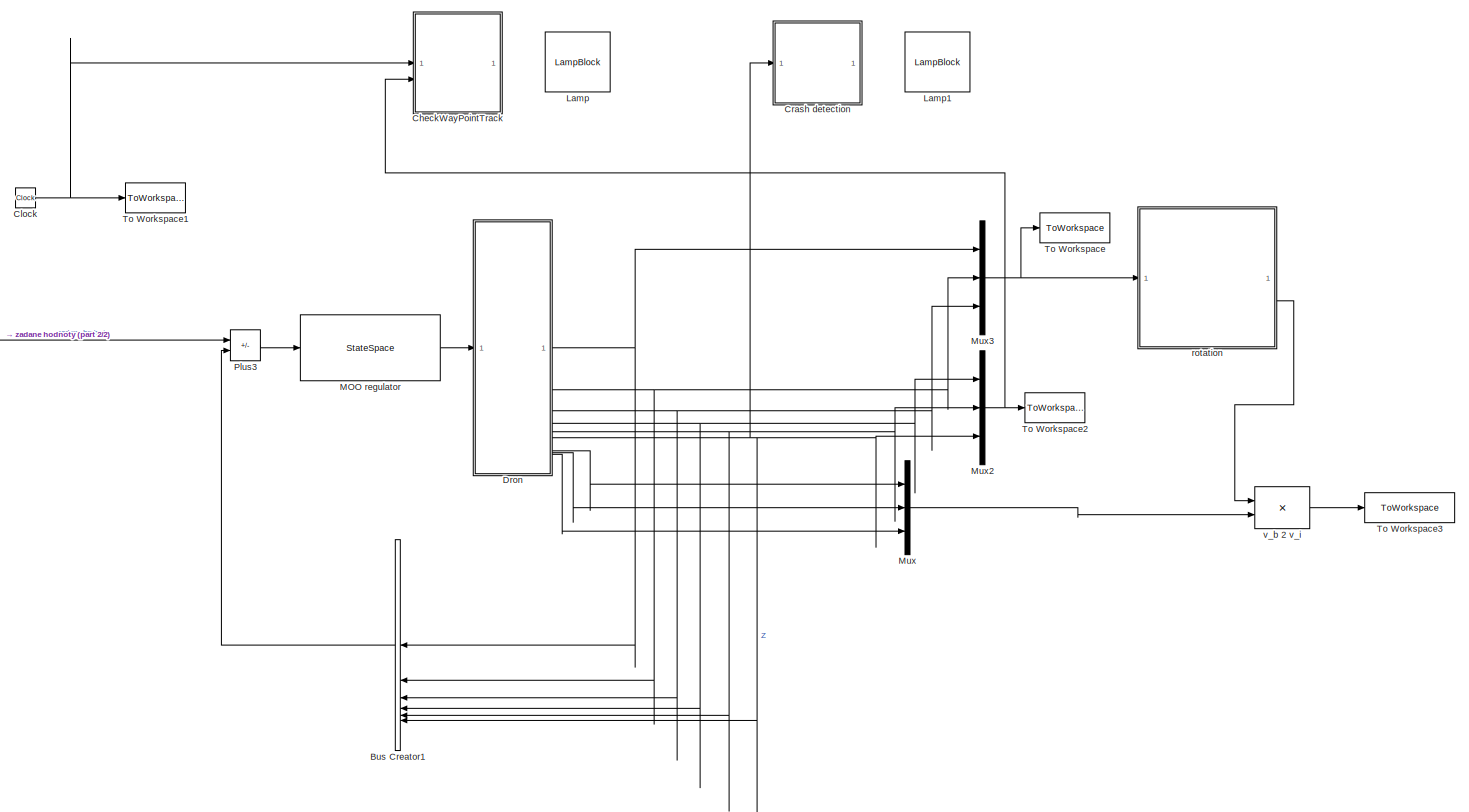
[diagram: root canvas - part 1/2, most of the canvas]
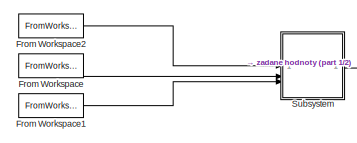
[diagram: root canvas - part 2/2, middle left region]
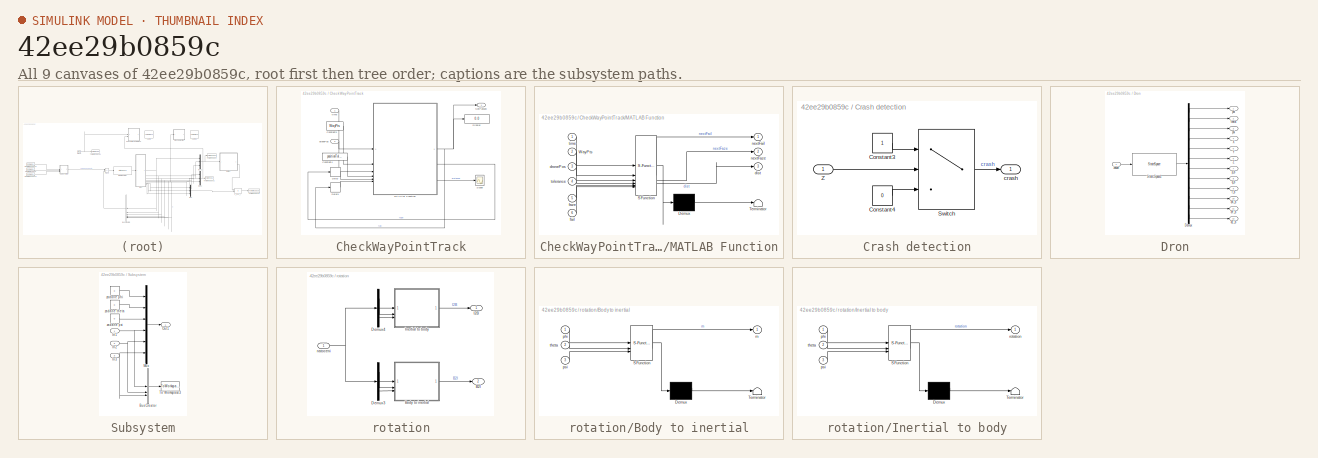
[diagram: thumbnail index - all 9 canvases of the model, root first then tree order]
MODEL slx_42ee29b0859c
KIND model
CONFIG AbsTol = auto
CONFIG EnableMultiTasking = off
CONFIG FixedStep = auto
CONFIG MaxStep = auto
CONFIG MinStep = auto
CONFIG RelTol = 1e-3
CONFIG SampleTimeConstraint = Unconstrained
CONFIG SolverName = VariableStepAuto
CONFIG StartTime = 0.0
CONFIG StopTime = Tfinal
BLOCK [BusCreator] Bus Creator1
  DisplayOption = bar
  InheritFromInputs = on
  Inputs = 6
  NameLocation = top
BLOCK [SubSystem] CheckWayPointTrack
BLOCK [Constant] CheckWayPointTrack/Constant3
  Value = WayPts
BLOCK [Constant] CheckWayPointTrack/Constant4
  Value = positionTolerance
BLOCK [Delay] CheckWayPointTrack/Delay
  DelayLength = 1
  InitialCondition = 1
  InputPortMap = u0
BLOCK [Delay] CheckWayPointTrack/Delay1
  DelayLength = 1
  InitialCondition = 0
  InputPortMap = u0
BLOCK [Display] CheckWayPointTrack/Display
  Decimation = 1
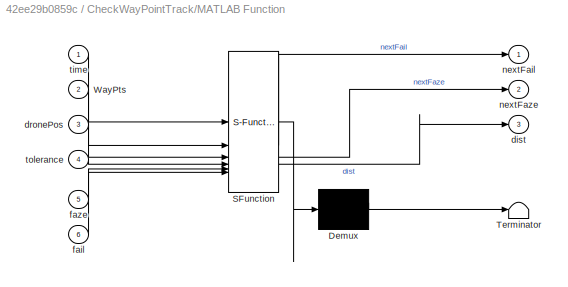
BLOCK [SubSystem] CheckWayPointTrack/MATLAB Function
  ErrorFcn = Stateflow.Translate.translate
  PermitHierarchicalResolution = ExplicitOnly
  SFBlockType = MATLAB Function
  TreatAsAtomicUnit = on
BLOCK [Demux] CheckWayPointTrack/MATLAB Function/ Demux 
  Outputs = 1
BLOCK [S-Function] CheckWayPointTrack/MATLAB Function/ SFunction 
  EnableBusSupport = on
  FunctionName = sf_sfun
  PortCounts = [6 4]
  SFcnIsStateOwnerBlock = off
  SFunctionDeploymentMode = off
  Tag = Stateflow S-Function 4
BLOCK [Terminator] CheckWayPointTrack/MATLAB Function/ Terminator 
BLOCK [Inport] CheckWayPointTrack/MATLAB Function/WayPts
  Port = 2
BLOCK [Outport] CheckWayPointTrack/MATLAB Function/dist
  Port = 3
BLOCK [Inport] CheckWayPointTrack/MATLAB Function/dronePos
  Port = 3
BLOCK [Inport] CheckWayPointTrack/MATLAB Function/fail
  Port = 6
BLOCK [Inport] CheckWayPointTrack/MATLAB Function/faze
  Port = 5
BLOCK [Outport] CheckWayPointTrack/MATLAB Function/nextFail
BLOCK [Outport] CheckWayPointTrack/MATLAB Function/nextFaze
  Port = 2
BLOCK [Inport] CheckWayPointTrack/MATLAB Function/time
BLOCK [Inport] CheckWayPointTrack/MATLAB Function/tolerance
  Port = 4
BLOCK [Outport] CheckWayPointTrack/NotPassed
BLOCK [Scope] CheckWayPointTrack/Scope
  Floating = off
  NumInputPorts = 1
  ScopeSpecificationString = Simulink.scopes.TimeScopeBlockCfg('CurrentConfiguration', extmgr.ConfigurationSet(extmgr.Configuration('Core','General UI',true),extmgr.Configuration('Core','Source UI',true),extmgr.Configuration('Sources','WiredSimulink',true,'DataLoggingVariableName','ScopeData1'),extmgr.Configuration('Visuals','Time Domain',true,'SerializedDisplays',{struct('MinYLimReal','-0.68947','MaxYLimReal','6.20524','YLab...<+1456ch>
BLOCK [Inport] CheckWayPointTrack/dronePos
  Port = 2
BLOCK [Inport] CheckWayPointTrack/time
BLOCK [Clock] Clock
BLOCK [SubSystem] Crash detection
BLOCK [Constant] Crash detection/Constant3
BLOCK [Constant] Crash detection/Constant4
  Value = 0
BLOCK [Switch] Crash detection/Switch
  InputSameDT = off
  SaturateOnIntegerOverflow = off
BLOCK [Inport] Crash detection/Z
BLOCK [Outport] Crash detection/crash
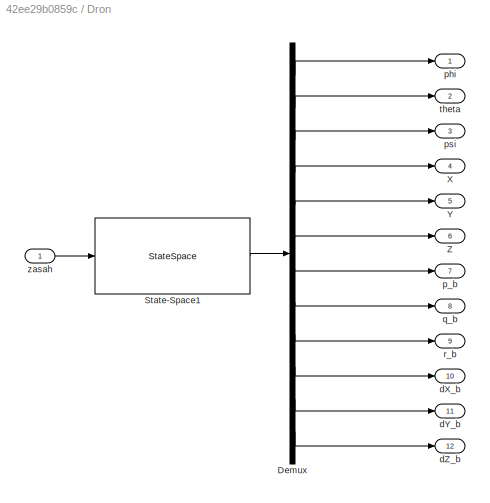
BLOCK [SubSystem] Dron
BLOCK [Demux] Dron/Demux
  Outputs = 12
BLOCK [StateSpace] Dron/State-Space1
  A = A
  B = B
  C = C
  D = D
  InitialCondition = IC
BLOCK [Outport] Dron/X
  Port = 4
BLOCK [Outport] Dron/Y
  Port = 5
BLOCK [Outport] Dron/Z
  Port = 6
BLOCK [Outport] Dron/dX_b
  Port = 10
BLOCK [Outport] Dron/dY_b
  Port = 11
BLOCK [Outport] Dron/dZ_b
  Port = 12
BLOCK [Outport] Dron/p_b
  Port = 7
BLOCK [Outport] Dron/phi
BLOCK [Outport] Dron/psi
  Port = 3
BLOCK [Outport] Dron/q_b
  Port = 8
BLOCK [Outport] Dron/r_b
  Port = 9
BLOCK [Outport] Dron/theta
  Port = 2
BLOCK [Inport] Dron/zasah
BLOCK [FromWorkspace] From Workspace
  SampleTime = ts
  VariableName = Ycmd
BLOCK [FromWorkspace] From Workspace1
  SampleTime = ts
  VariableName = Zcmd
BLOCK [FromWorkspace] From Workspace2
  SampleTime = ts
  VariableName = Xcmd
BLOCK [LampBlock] Lamp
  LabelPosition = Hide
BLOCK [LampBlock] Lamp1
  LabelPosition = Hide
BLOCK [StateSpace] MOO regulator
  A = At
  B = Bt
  C = -Ct
  D = -Dt
  InitialCondition = 0
BLOCK [Mux] Mux
  DisplayOption = bar
  Inputs = 3
BLOCK [Mux] Mux2
  DisplayOption = bar
  Inputs = 3
BLOCK [Mux] Mux3
  DisplayOption = bar
  Inputs = 3
BLOCK [Sum] Plus3
  IconShape = rectangular
  Inputs = +-
BLOCK [SubSystem] Subsystem
BLOCK [BusCreator] Subsystem/Bus Creator
  DisplayOption = bar
  InheritFromInputs = on
  Inputs = 3
BLOCK [Inport] Subsystem/In1
BLOCK [Inport] Subsystem/In2
  Port = 2
BLOCK [Inport] Subsystem/In3
  Port = 3
BLOCK [Mux] Subsystem/Mux
  DisplayOption = bar
  Inputs = 6
BLOCK [Outport] Subsystem/Out1
BLOCK [ToWorkspace] Subsystem/To Workspace3
  FixptAsFi = on
  MaxDataPoints = inf
  SampleTime = ts
  VariableName = Tar
BLOCK [Constant] Subsystem/zadane phi
  Value = 0
BLOCK [Constant] Subsystem/zadane psi
  Value = 0
BLOCK [Constant] Subsystem/zadane theta
  Value = 0
BLOCK [ToWorkspace] To Workspace
  FixptAsFi = on
  MaxDataPoints = inf
  SampleTime = ts
  VariableName = EulerAngles
BLOCK [ToWorkspace] To Workspace1
  FixptAsFi = on
  MaxDataPoints = inf
  SampleTime = ts
  VariableName = time
BLOCK [ToWorkspace] To Workspace2
  FixptAsFi = on
  MaxDataPoints = inf
  SampleTime = ts
  VariableName = XYZ
BLOCK [ToWorkspace] To Workspace3
  FixptAsFi = on
  MaxDataPoints = inf
  SampleTime = ts
  VariableName = VXYZ
BLOCK [SubSystem] rotation
BLOCK [Outport] rotation/B2I
  Port = 2
BLOCK [SubSystem] rotation/Body to inertial
  ErrorFcn = Stateflow.Translate.translate
  PermitHierarchicalResolution = ExplicitOnly
  SFBlockType = MATLAB Function
  TreatAsAtomicUnit = on
BLOCK [Demux] rotation/Body to inertial/ Demux 
  Outputs = 1
BLOCK [S-Function] rotation/Body to inertial/ SFunction 
  EnableBusSupport = on
  FunctionName = sf_sfun
  PortCounts = [3 2]
  SFcnIsStateOwnerBlock = off
  SFunctionDeploymentMode = off
  Tag = Stateflow S-Function 1
BLOCK [Terminator] rotation/Body to inertial/ Terminator 
BLOCK [Outport] rotation/Body to inertial/m
BLOCK [Inport] rotation/Body to inertial/phi
BLOCK [Inport] rotation/Body to inertial/psi
  Port = 3
BLOCK [Inport] rotation/Body to inertial/theta
  Port = 2
BLOCK [Demux] rotation/Demux3
  Outputs = 3
BLOCK [Demux] rotation/Demux4
  Outputs = 3
BLOCK [Outport] rotation/I2B
BLOCK [SubSystem] rotation/Inertial to body
  ErrorFcn = Stateflow.Translate.translate
  PermitHierarchicalResolution = ExplicitOnly
  SFBlockType = MATLAB Function
  TreatAsAtomicUnit = on
BLOCK [Demux] rotation/Inertial to body/ Demux 
  Outputs = 1
BLOCK [S-Function] rotation/Inertial to body/ SFunction 
  EnableBusSupport = on
  FunctionName = sf_sfun
  PortCounts = [3 2]
  SFcnIsStateOwnerBlock = off
  SFunctionDeploymentMode = off
  Tag = Stateflow S-Function 5
BLOCK [Terminator] rotation/Inertial to body/ Terminator 
BLOCK [Inport] rotation/Inertial to body/phi
BLOCK [Inport] rotation/Inertial to body/psi
  Port = 3
BLOCK [Outport] rotation/Inertial to body/rotation
BLOCK [Inport] rotation/Inertial to body/theta
  Port = 2
BLOCK [Inport] rotation/natoceni
BLOCK [Product] v_b 2 v_i
  Multiplication = Matrix(*)
LINE Bus Creator1:1 -> Plus3:2
LINE CheckWayPointTrack/Constant3:1 -> CheckWayPointTrack/MATLAB Function:2
LINE CheckWayPointTrack/Constant4:1 -> CheckWayPointTrack/MATLAB Function:4
LINE CheckWayPointTrack/Delay1:1 -> CheckWayPointTrack/MATLAB Function:6
LINE CheckWayPointTrack/Delay:1 -> CheckWayPointTrack/MATLAB Function:5
NET CheckWayPointTrack/MATLAB Function:1 -> CheckWayPointTrack/Delay1:1, CheckWayPointTrack/Display:1, CheckWayPointTrack/NotPassed:1
LINE CheckWayPointTrack/MATLAB Function:2 -> CheckWayPointTrack/Delay:1
LINE CheckWayPointTrack/MATLAB Function:3 -> CheckWayPointTrack/Scope:1
LINE CheckWayPointTrack/dronePos:1 -> CheckWayPointTrack/MATLAB Function:3
LINE CheckWayPointTrack/time:1 -> CheckWayPointTrack/MATLAB Function:1
NET Clock:1 -> CheckWayPointTrack:1, To Workspace1:1
LINE Crash detection/Constant3:1 -> Crash detection/Switch:1
LINE Crash detection/Constant4:1 -> Crash detection/Switch:3
LINE Crash detection/Switch:1 -> Crash detection/crash:1
LINE Crash detection/Z:1 -> Crash detection/Switch:2
LINE Dron/Demux:1 -> Dron/phi:1
LINE Dron/Demux:10 -> Dron/dX_b:1
LINE Dron/Demux:11 -> Dron/dY_b:1
LINE Dron/Demux:12 -> Dron/dZ_b:1
LINE Dron/Demux:2 -> Dron/theta:1
LINE Dron/Demux:3 -> Dron/psi:1
LINE Dron/Demux:4 -> Dron/X:1
LINE Dron/Demux:5 -> Dron/Y:1
LINE Dron/Demux:6 -> Dron/Z:1
LINE Dron/Demux:7 -> Dron/p_b:1
LINE Dron/Demux:8 -> Dron/q_b:1
LINE Dron/Demux:9 -> Dron/r_b:1
LINE Dron/State-Space1:1 -> Dron/Demux:1
LINE Dron/zasah:1 -> Dron/State-Space1:1
NET Dron:1 -> Bus Creator1:1, Mux3:1
LINE Dron:10 -> Mux:1
LINE Dron:11 -> Mux:2
LINE Dron:12 -> Mux:3
NET Dron:2 -> Bus Creator1:2, Mux3:2
NET Dron:3 -> Bus Creator1:3, Mux3:3
NET Dron:4 -> Bus Creator1:4, Mux2:1
NET Dron:5 -> Bus Creator1:5, Mux2:2
NET Dron:6 -> Bus Creator1:6, Crash detection:1, Mux2:3
LINE From Workspace1:1 -> Subsystem:3
LINE From Workspace2:1 -> Subsystem:1
LINE From Workspace:1 -> Subsystem:2
LINE MOO regulator:1 -> Dron:1
NET Mux2:1 -> CheckWayPointTrack:2, To Workspace2:1
NET Mux3:1 -> To Workspace:1, rotation:1
LINE Mux:1 -> v_b 2 v_i:2
LINE Plus3:1 -> MOO regulator:1
LINE Subsystem/Bus Creator:1 -> Subsystem/To Workspace3:1
NET Subsystem/In1:1 -> Subsystem/Bus Creator:1, Subsystem/Mux:4
NET Subsystem/In2:1 -> Subsystem/Bus Creator:2, Subsystem/Mux:5
NET Subsystem/In3:1 -> Subsystem/Bus Creator:3, Subsystem/Mux:6
LINE Subsystem/Mux:1 -> Subsystem/Out1:1
LINE Subsystem/zadane phi:1 -> Subsystem/Mux:1
LINE Subsystem/zadane psi:1 -> Subsystem/Mux:3
LINE Subsystem/zadane theta:1 -> Subsystem/Mux:2
LINE Subsystem:1 -> Plus3:1
LINE rotation/Body to inertial:1 -> rotation/B2I:1
LINE rotation/Demux3:1 -> rotation/Body to inertial:1
LINE rotation/Demux3:2 -> rotation/Body to inertial:2
LINE rotation/Demux3:3 -> rotation/Body to inertial:3
LINE rotation/Demux4:1 -> rotation/Inertial to body:1
LINE rotation/Demux4:2 -> rotation/Inertial to body:2
LINE rotation/Demux4:3 -> rotation/Inertial to body:3
LINE rotation/Inertial to body:1 -> rotation/I2B:1
NET rotation/natoceni:1 -> rotation/Demux3:1, rotation/Demux4:1
LINE rotation:2 -> v_b 2 v_i:1
LINE v_b 2 v_i:1 -> To Workspace3:1
note: NET lines group one-source signal fan-out (src -> all destinations, sorted); 1:1 wires keep LINE
CHART rotation/Body to inertial states=1 transitions=1
  STATE_LABEL 'eML_blk_kernel()'
  STATE_LABEL 'SCRIPT:\nfunction m = fcn(phi,theta,psi)\n    T_BtoV2 = [\n                [1 0 0];\n                [0 cos(-phi) sin(-phi)];\n                [0 -sin(-phi) cos(-phi)]\n              ];\n    T_V2toV1 = [\n                [cos(-theta) 0 -sin(-theta)];\n                [0 1 0];\n                [sin(-theta) 0 cos(-theta)]\n               ];\n    T_V1toI = [\n                [cos(-psi) sin(-psi) 0];\n             ...<+109ch>'
CHART CheckWayPointTrack/MATLAB Function states=1 transitions=1
  STATE_LABEL 'eML_blk_kernel()'
  STATE_LABEL 'SCRIPT:\nfunction [nextFail, nextFaze, dist] = check_waypoints(time, WayPts, dronePos, tolerance, faze, fail)\n\n    nextFail = fail;\n    nextFaze = faze;\n    dist = 0;\n\n    if faze > size(WayPts,1)\n        return\n    end\n    criticalTime = WayPts(faze,4);\n    dist = abs(norm(WayPts(faze,1:3)) - norm(dronePos));\n    if dist <= tolerance\n        nextFaze = faze + 1;\n    else \n        nextFaze = faze;\n...<+164ch>'
CHART rotation/Inertial to body states=1 transitions=1
  STATE_LABEL 'eML_blk_kernel()'
  STATE_LABEL 'SCRIPT:\nfunction rotation = RollPitchYaw2Rotation(phi,theta,psi)\n\n    % Rotation matrices\n    R3 = [cos(psi) sin(psi) 0;...\n          -sin(psi) cos(psi) 0;...\n          0 0 1];\n    R2 = [cos(theta) 0 -sin(theta);...\n          0 1 0;...\n          sin(theta) 0 cos(theta)];\n    R1 = [1 0 0;...\n          0 cos(phi) sin(phi);...\n          0 -sin(phi) cos(phi)];\n    \n    % Rotation\n    rotation = R1 * R...<+12ch>'
CHART  states=0 transitions=0
CHART  states=0 transitions=0
CHART  states=0 transitions=0
